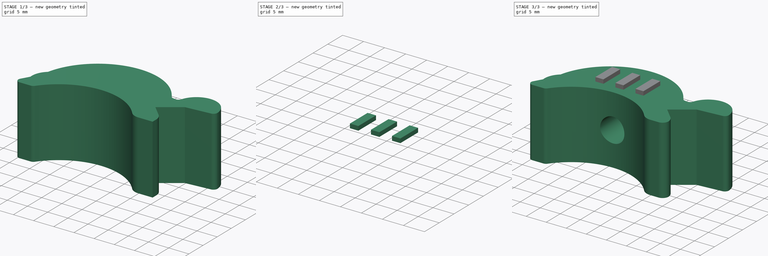
[diagram: build sequence overview — one tinted view per stage of 3, left to right]
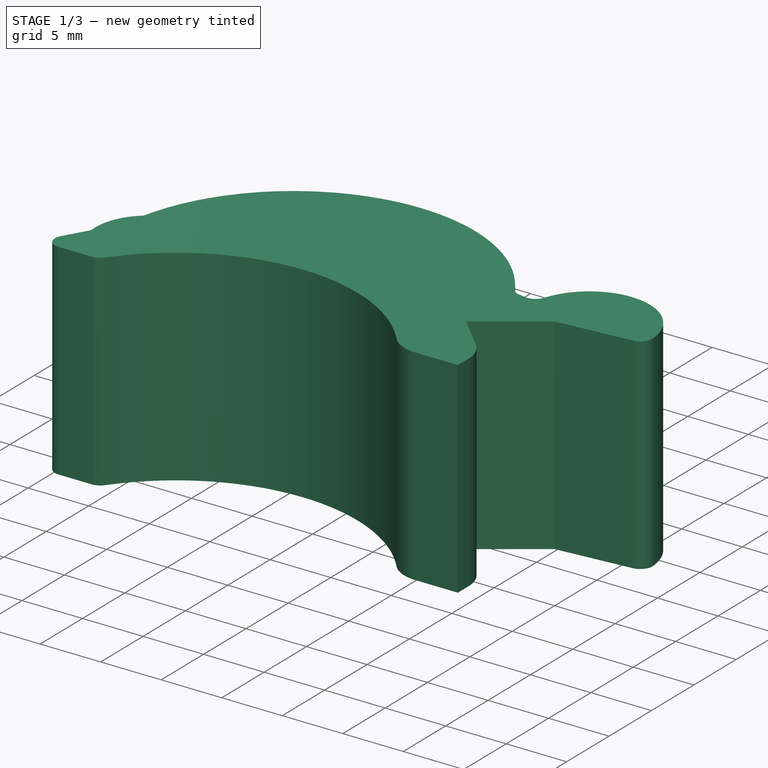
[diagram: stage 1 of 3 — iso view after this stage's code; geometry added in this stage tinted green]
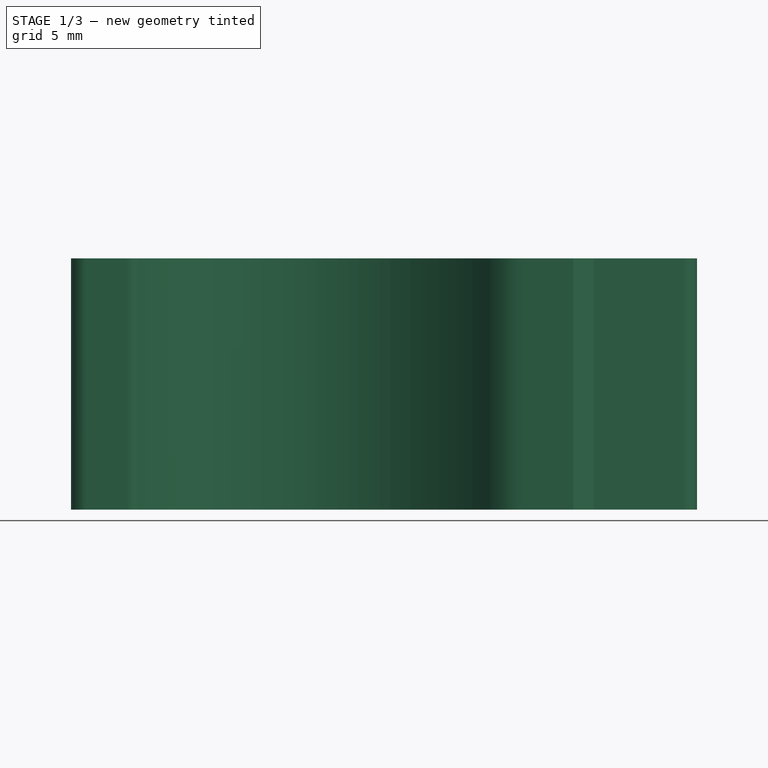
[diagram: stage 1 of 3 — front view after this stage's code; geometry added in this stage tinted green]
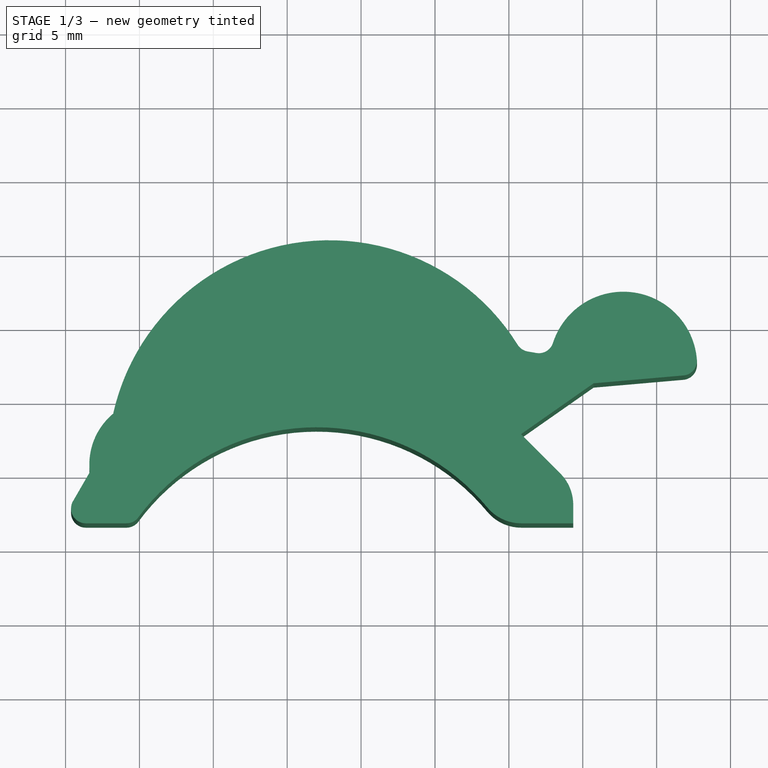
[diagram: stage 1 of 3 — top view after this stage's code; geometry added in this stage tinted green]
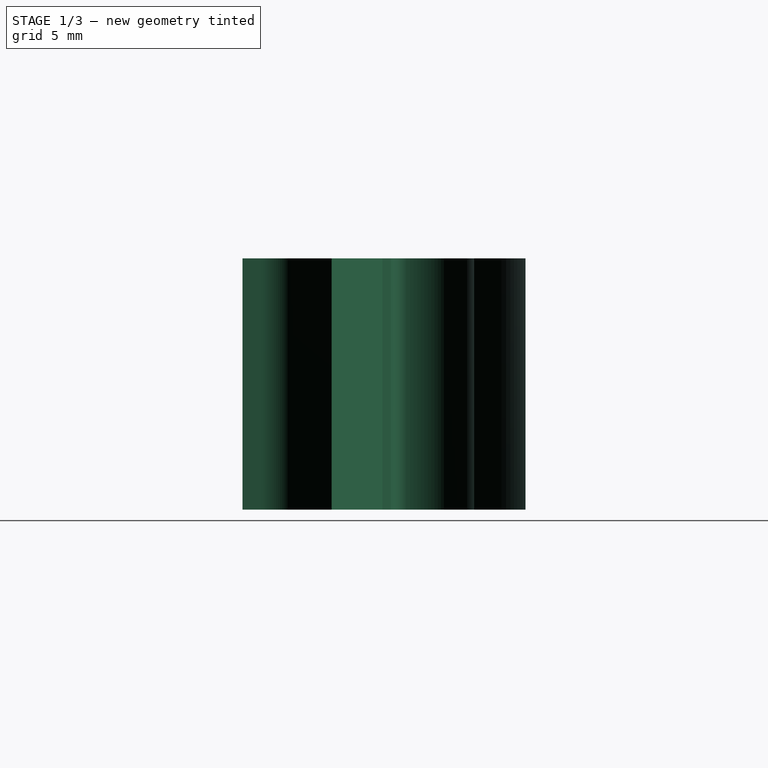
[diagram: stage 1 of 3 — right view after this stage's code; geometry added in this stage tinted green]
FCSTD DOCUMENT  (FreeCAD 0.16R6712 (Git))
Label: turtle
License: All rights reserved
LicenseURL: http://en.wikipedia.org/wiki/All_rights_reserved
objects: Sketcher::SketchObject×3, Part::Extrusion×3, Part::Fillet×3, Part::Cut×1, Part::Fuse×1
note: 11 computed .brp shape members not serialized (recipe doc carries the construction recipe); baked Part::Feature solids carry a one-line shape summary decoded from their .brp

FEATURE [Sketcher::SketchObject] Sketch
  sketch-geometry (13):
    g0: LineSegment StartX=4.63837 StartY=11.6395 StartZ=0 EndX=9.63837 EndY=11.6395 EndZ=0
    g1: ArcOfCircle CenterX=21.9976 CenterY=3.13951 CenterZ=0 NormalX=0 NormalY=0 NormalZ=1 Radius=15 StartAngle=0.602455 EndAngle=2.53914
    g2: LineSegment [constr] StartX=11.4249 StartY=18.1395 StartZ=0 EndX=47.8242 EndY=18.1395 EndZ=0
    g3: LineSegment StartX=34.3568 StartY=11.6395 StartZ=0 EndX=39.3568 EndY=11.6395 EndZ=0
    g4: LineSegment StartX=39.3568 StartY=11.6395 StartZ=0 EndX=39.3568 EndY=14.1395 EndZ=0
    g5: LineSegment StartX=39.3568 StartY=14.1395 StartZ=0 EndX=35.8212 EndY=17.675 EndZ=0
    g6: LineSegment StartX=35.8212 StartY=17.675 StartZ=0 EndX=40.7362 EndY=21.1165 EndZ=0
    g7: LineSegment StartX=40.7362 StartY=21.1165 StartZ=0 EndX=47.7095 EndY=21.7266 EndZ=0
    g8: ArcOfCircle CenterX=42.7445 CenterY=22.317 CenterZ=0 NormalX=0 NormalY=0 NormalZ=1 Radius=5 StartAngle=6.16482 EndAngle=9.28677
    g9: LineSegment StartX=37.792 StartY=23.0049 StartZ=0 EndX=35.8224 EndY=23.3522 EndZ=0
    g10: ArcOfCircle CenterX=22.8624 CenterY=15.7999 CenterZ=0 NormalX=0 NormalY=0 NormalZ=1 Radius=15 StartAngle=0.527632 EndAngle=2.92232
    g11: LineSegment StartX=4.63837 StartY=11.6395 StartZ=0 EndX=6.63837 EndY=15.1036 EndZ=0
    g12: ArcOfCircle CenterX=11.0835 CenterY=15.622 CenterZ=0 NormalX=0 NormalY=0 NormalZ=1 Radius=4.47528 StartAngle=2.26465 EndAngle=3.2577
  constraints (35):
    c: Horizontal(g0)
    c: Radius(g1) = 15
    c: Coincident(g0,g1)
    c: Horizontal(g2)
    c: Tangent(g1,g2)
    c: Distance(g2,g0) = 6.5
    c: Horizontal(g3)
    c: Coincident(g3,g1)
    c: PointOnObject(g1,g0)
    c: Distance(g0) = 5
    c: Distance(g3) = 5
    c: Vertical(g4)
    c: Distance(g4) = 2.5
    c: Coincident(g3,g4)
    c: Angle(g5,g3) = 0.785398
    c: Coincident(g4,g5)
    c: Distance(g5) = 5
    c: Angle(g5,g6) = 1.39626
    c: Coincident(g5,g6)
    c: Distance(g6) = 6
    c: Distance(g7) = 7
    c: Angle(g7,g3) = 3.05433
    c: Coincident(g6,g7)
    c: Coincident(g7,g8)
    c: Radius(g8) = 5
    c: Coincident(g9,g8)
    c: Distance(g9) = 2
    c: Radius(g10) = 15
    c: Coincident(g9,g10)
    c: Angle(g9,g3) = 0.174533
    c: Distance(g11) = 4
    c: Coincident(g0,g11)
    c: Angle(g0,g11) = 1.0472
    c: Coincident(g10,g12)
    c: Coincident(g11,g12)
FEATURE [Part::Extrusion] Extrude
  Base = -> Sketch
  Dir = (0,0,17)
  Solid = true
FEATURE [Part::Fillet] Fillet
  Base = -> Extrude
  Edges = 5 edges r=1: [Edge1,Edge2,Edge20,Edge23,Edge26]
FEATURE [Part::Fillet] Fillet001
  Base = -> Fillet
  Edges = 2 edges r=3: [Edge40,Edge44]
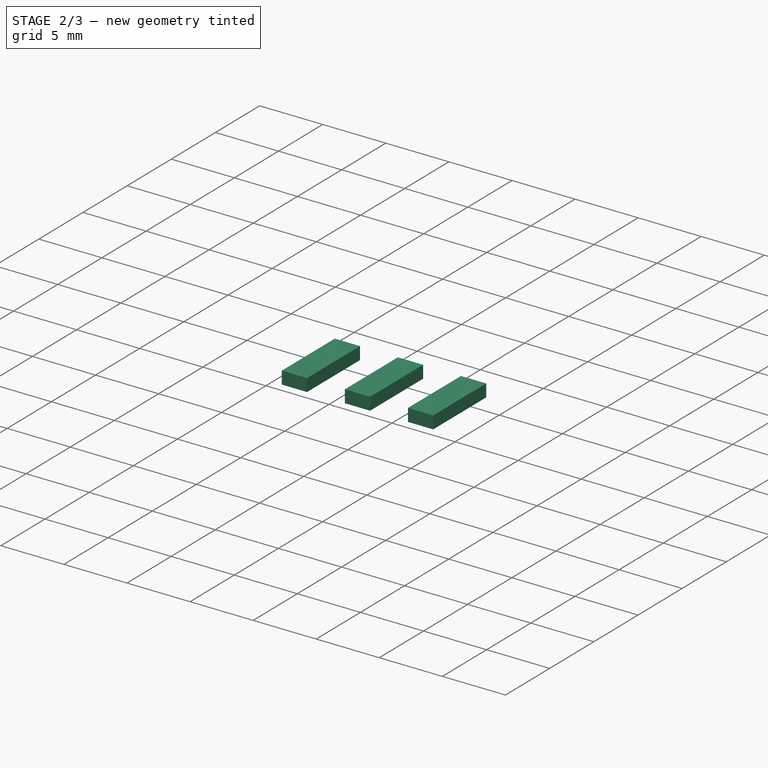
[diagram: stage 2 of 3 — iso view after this stage's code; geometry added in this stage tinted green]
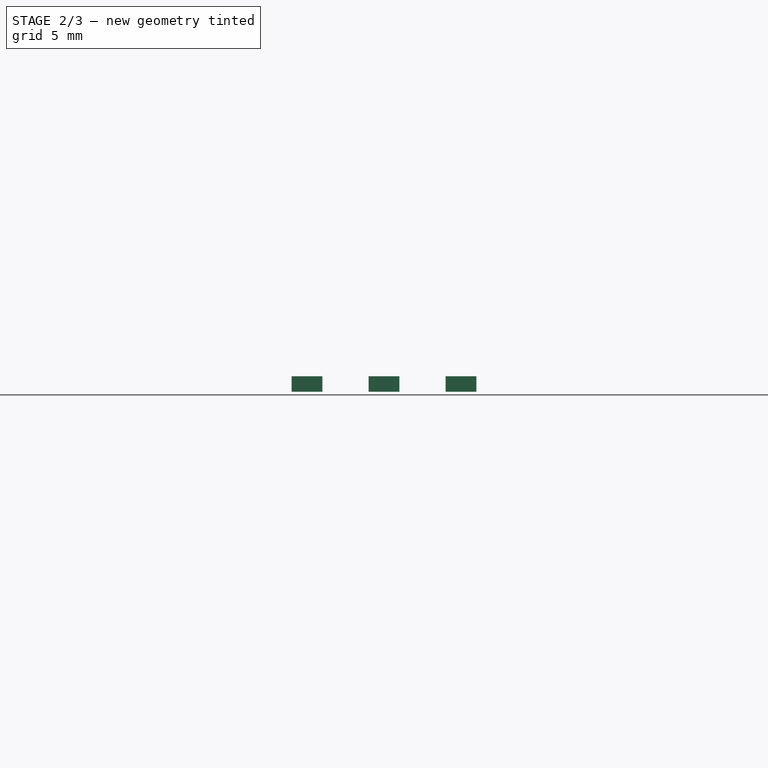
[diagram: stage 2 of 3 — front view after this stage's code; geometry added in this stage tinted green]
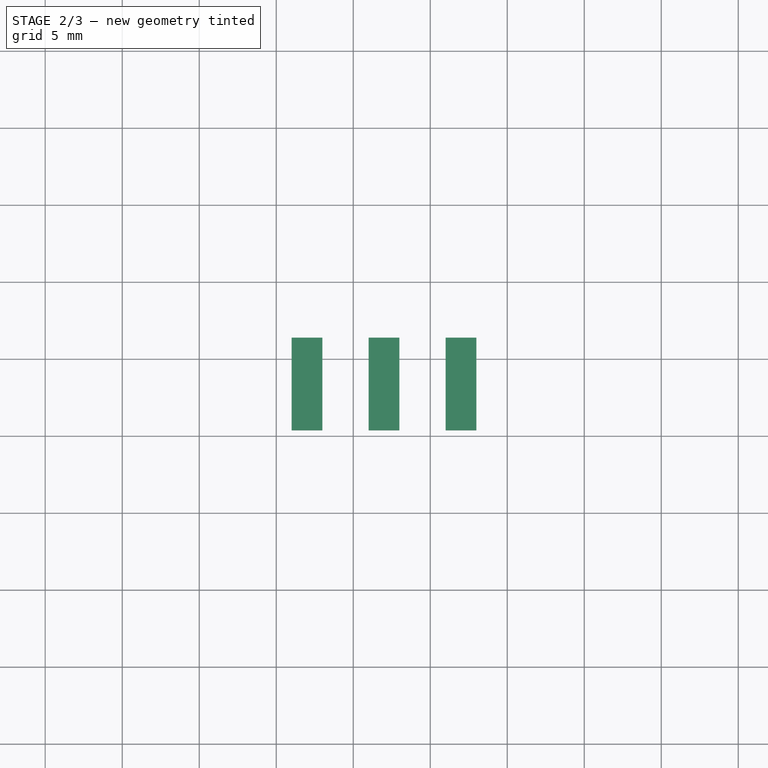
[diagram: stage 2 of 3 — top view after this stage's code; geometry added in this stage tinted green]
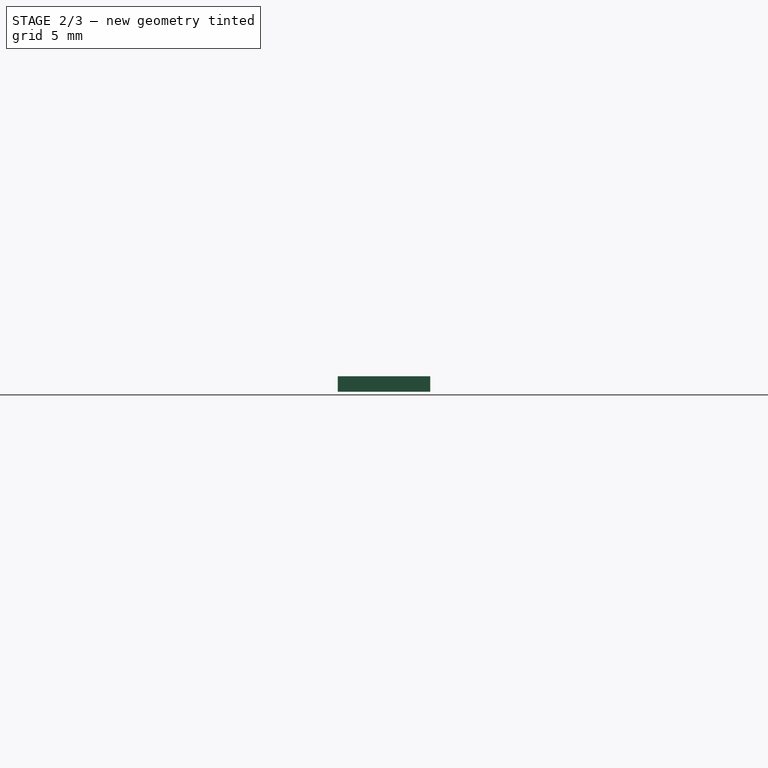
[diagram: stage 2 of 3 — right view after this stage's code; geometry added in this stage tinted green]
FEATURE [Part::Fillet] Fillet002
  Base = -> Fillet001
  Edges = 1 edges r=1.5: [Edge27]
FEATURE [Part::Extrusion] Extrude002
  Base = -> Sketch001
  Dir = (0,0,1)
  Solid = true
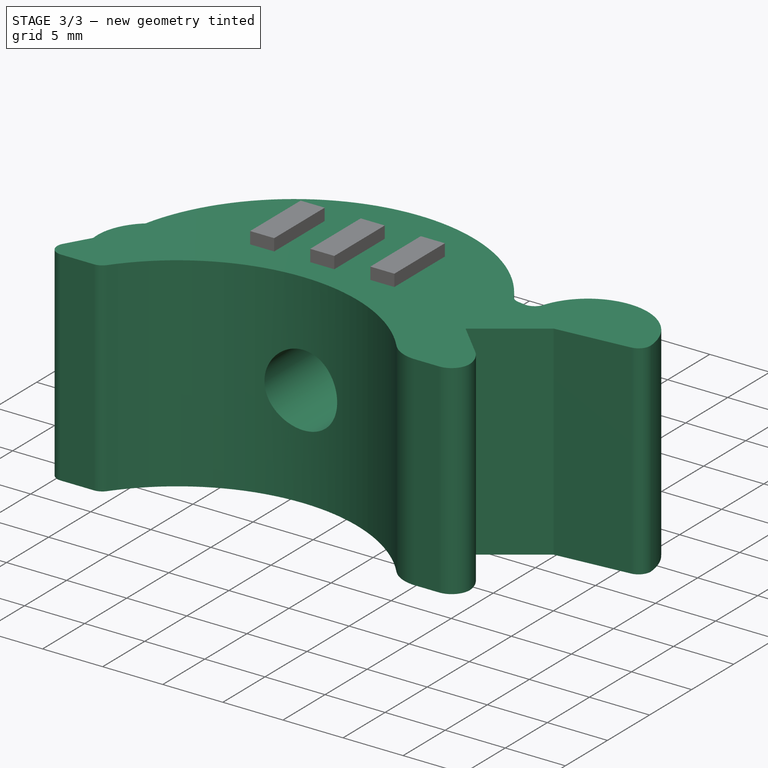
[diagram: stage 3 of 3 — iso view after this stage's code; geometry added in this stage tinted green]
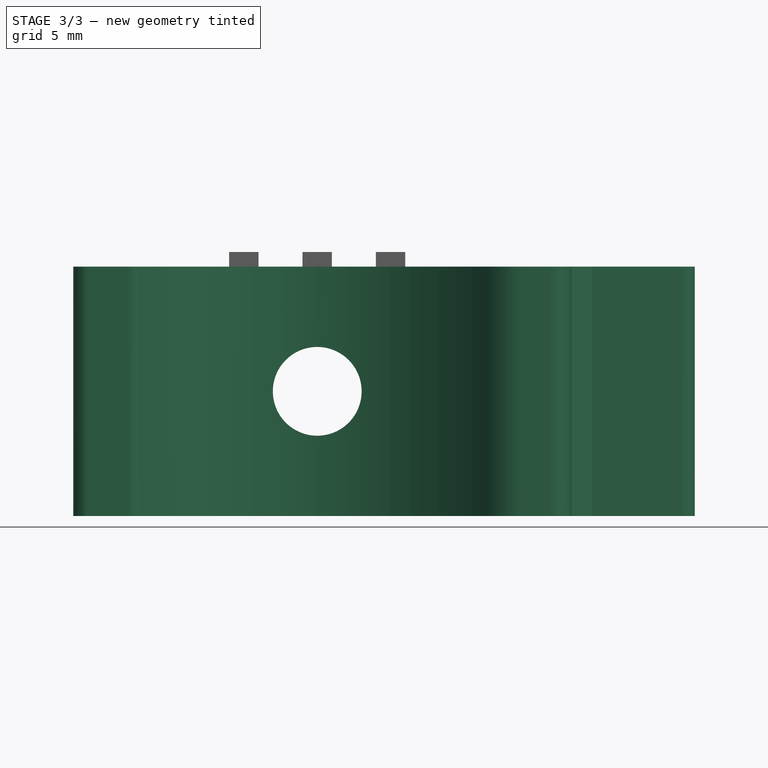
[diagram: stage 3 of 3 — front view after this stage's code; geometry added in this stage tinted green]
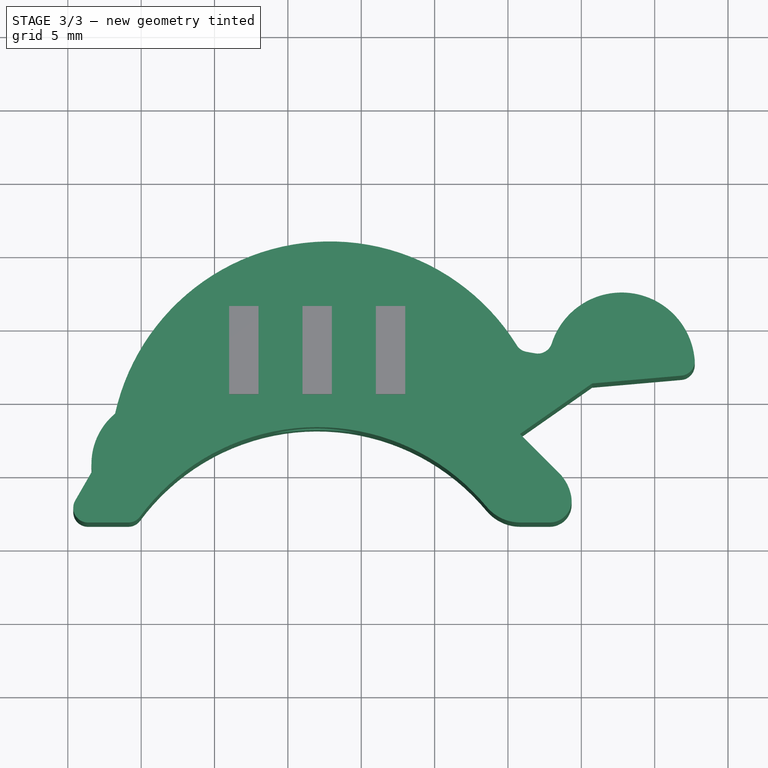
[diagram: stage 3 of 3 — top view after this stage's code; geometry added in this stage tinted green]
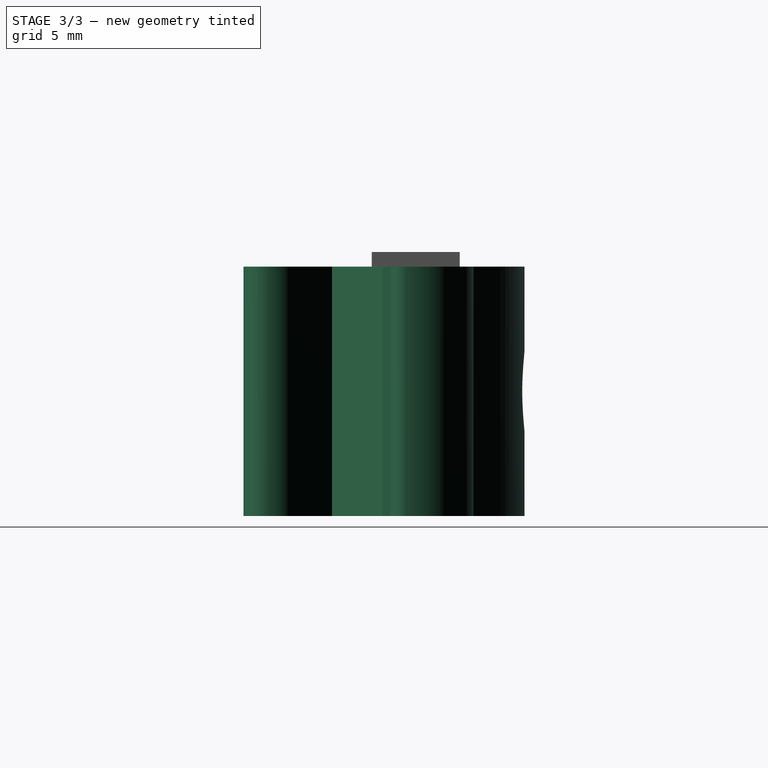
[diagram: stage 3 of 3 — right view after this stage's code; geometry added in this stage tinted green]
FEATURE [Sketcher::SketchObject] Sketch001
  ExternalGeometry = -> [Fillet002]
  Placement = pos=(0,0,17) rot=(0,0,1;0rad)
  Support = -> Fillet002 [Face21]
  sketch-geometry (14):
    g0: LineSegment StartX=15.9976 StartY=26.384 StartZ=0 EndX=17.9976 EndY=26.384 EndZ=0
    g1: LineSegment StartX=17.9976 StartY=26.384 StartZ=0 EndX=17.9976 EndY=20.384 EndZ=0
    g2: LineSegment StartX=17.9976 StartY=20.384 StartZ=0 EndX=15.9976 EndY=20.384 EndZ=0
    g3: LineSegment StartX=15.9976 StartY=20.384 StartZ=0 EndX=15.9976 EndY=26.384 EndZ=0
    g4: LineSegment StartX=20.9976 StartY=26.384 StartZ=0 EndX=22.9976 EndY=26.384 EndZ=0
    g5: LineSegment StartX=22.9976 StartY=26.384 StartZ=0 EndX=22.9976 EndY=20.384 EndZ=0
    g6: LineSegment StartX=22.9976 StartY=20.384 StartZ=0 EndX=20.9976 EndY=20.384 EndZ=0
    g7: LineSegment StartX=20.9976 StartY=20.384 StartZ=0 EndX=20.9976 EndY=26.384 EndZ=0
    g8: LineSegment StartX=25.9976 StartY=26.384 StartZ=0 EndX=27.9976 EndY=26.384 EndZ=0
    g9: LineSegment StartX=27.9976 StartY=26.384 StartZ=0 EndX=27.9976 EndY=20.384 EndZ=0
    g10: LineSegment StartX=27.9976 StartY=20.384 StartZ=0 EndX=25.9976 EndY=20.384 EndZ=0
    g11: LineSegment StartX=25.9976 StartY=20.384 StartZ=0 EndX=25.9976 EndY=26.384 EndZ=0
    g12: LineSegment [constr] StartX=16.1399 StartY=20.384 StartZ=0 EndX=28.8233 EndY=20.384 EndZ=0
    g13: LineSegment [constr] StartX=21.9976 StartY=3.13951 StartZ=0 EndX=21.9976 EndY=18.5574 EndZ=0
  constraints (39):
    c: Coincident(g0,g1)
    c: Coincident(g1,g2)
    c: Coincident(g2,g3)
    c: Coincident(g3,g0)
    c: Horizontal(g0)
    c: Horizontal(g2)
    c: Vertical(g1)
    c: Vertical(g3)
    c: Coincident(g4,g5)
    c: Coincident(g5,g6)
    c: Coincident(g6,g7)
    c: Coincident(g7,g4)
    c: Horizontal(g4)
    c: Horizontal(g6)
    c: Vertical(g5)
    c: Vertical(g7)
    c: Coincident(g8,g9)
    c: Coincident(g9,g10)
    c: Coincident(g10,g11)
    c: Coincident(g11,g8)
    c: Horizontal(g8)
    c: Horizontal(g10)
    c: Vertical(g9)
    c: Vertical(g11)
    c: Horizontal(g12)
    c: PointOnObject(g1,g12)
    c: PointOnObject(g5,g12)
    c: PointOnObject(g9,g12)
    c: Distance(g1,g7) = 3
    c: Distance(g5,g11) = 3
    c: Coincident(g13,g-3)
    c: Vertical(g13)
    c: Symmetric(g6,g5,g13)
    c: Distance(g4) = 2
    c: Distance(g8) = 2
    c: Distance(g0) = 2
    c: Distance(g3) = 6
    c: Distance(g7) = 6
    c: Distance(g11) = 6
FEATURE [Sketcher::SketchObject] Sketch002
  Placement = pos=(0,0,0) rot=(-1,0,0;4.71239rad)
  sketch-geometry (5):
    g0: LineSegment [constr] StartX=0 StartY=0 StartZ=0 EndX=49.4575 EndY=0 EndZ=0
    g1: LineSegment [constr] StartX=0 StartY=17 StartZ=0 EndX=51.5904 EndY=17 EndZ=0
    g2: LineSegment [constr] StartX=0 StartY=8.5 StartZ=0 EndX=22 EndY=8.5 EndZ=0
    g3: LineSegment StartX=0 StartY=0 StartZ=0 EndX=0 EndY=17 EndZ=0
    g4: Circle CenterX=22 CenterY=8.5 CenterZ=0 NormalX=0 NormalY=0 NormalZ=1 Radius=3.025
  constraints (12):
    c: Horizontal(g0)
    c: Coincident(g0,g-1)
    c: Horizontal(g1)
    c: Horizontal(g2)
    c: Vertical(g3)
    c: Coincident(g0,g3)
    c: Coincident(g3,g1)
    c: Symmetric(g3,g3,g2)
    c: Distance(g-1,g1) = 17
    c: Radius(g4) = 3.025
    c: Coincident(g2,g4)
    c: Distance(g2,g3) = 22
FEATURE [Part::Extrusion] Extrude001
  Base = -> Sketch002
  Dir = (0,100,0)
  Solid = true
FEATURE [Part::Cut] Cut
  Base = -> Fillet002
  Tool = -> Extrude001
FEATURE [Part::Fuse] Fusion
  Base = -> Cut
  Tool = -> Extrude002
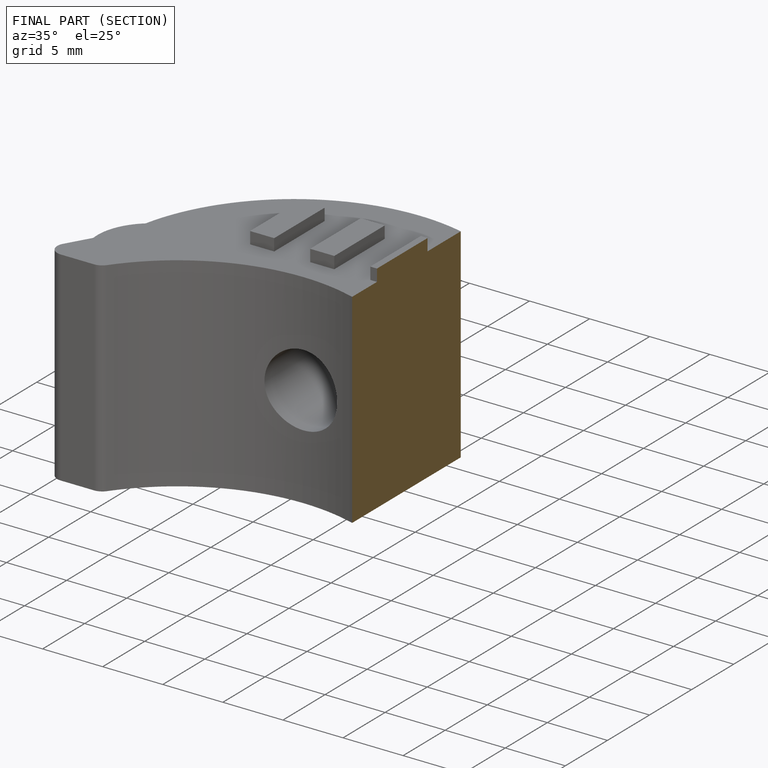
[diagram: finished part — half-section view (interior)]
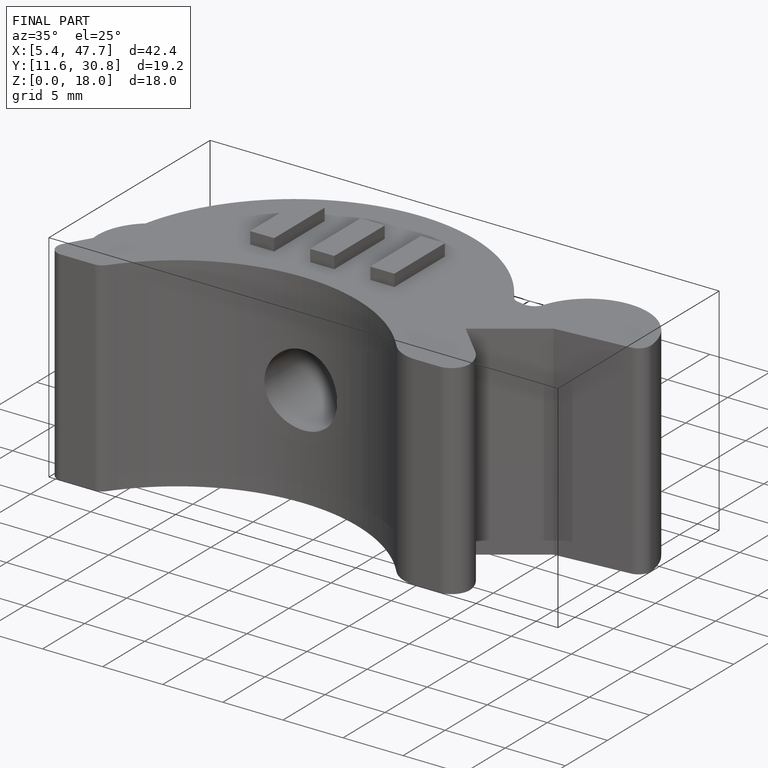
[diagram: finished part — iso view with bounding-box wireframe]
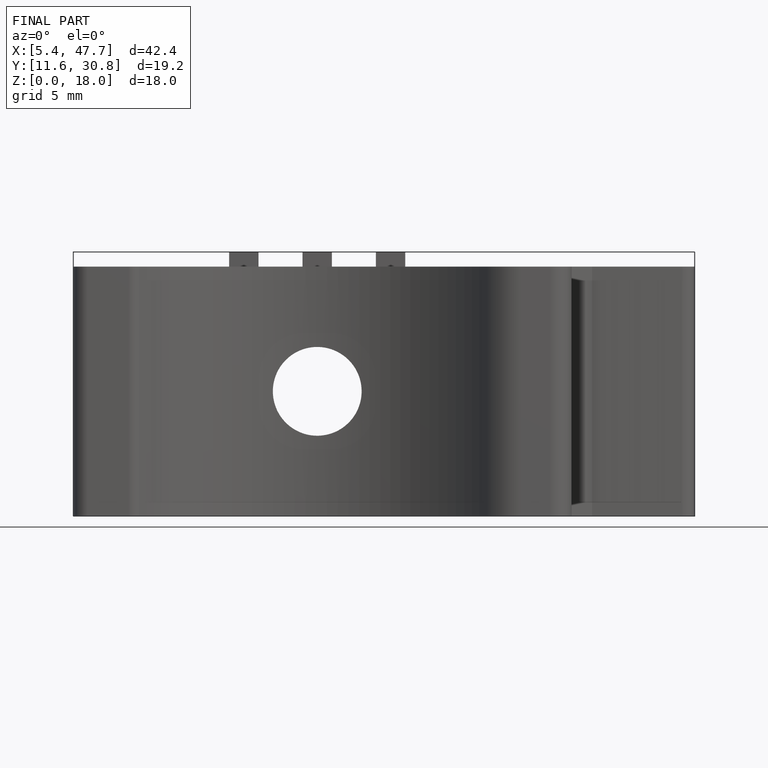
[diagram: finished part — front view with bounding-box wireframe]
